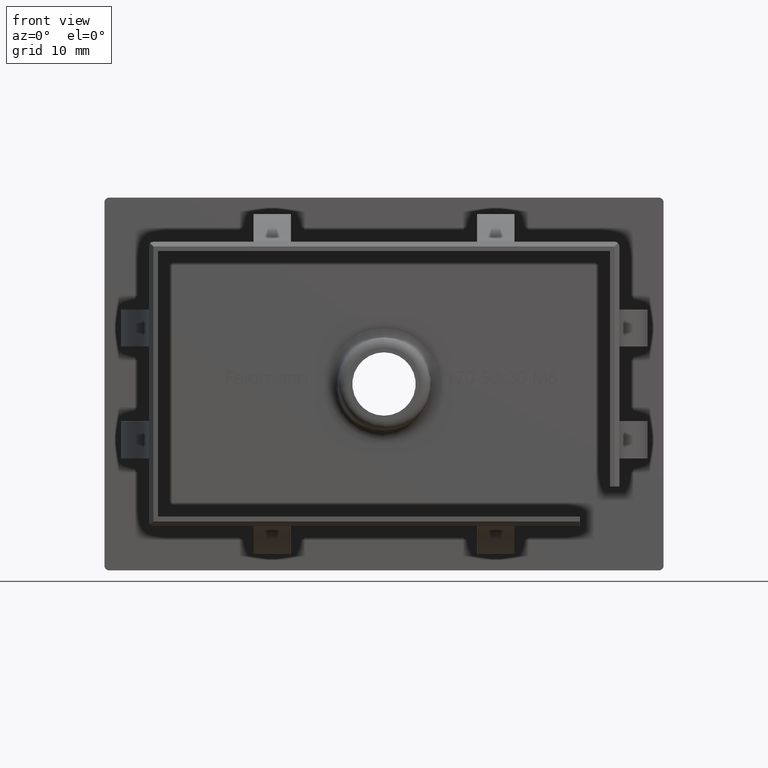
[diagram: clean part render]
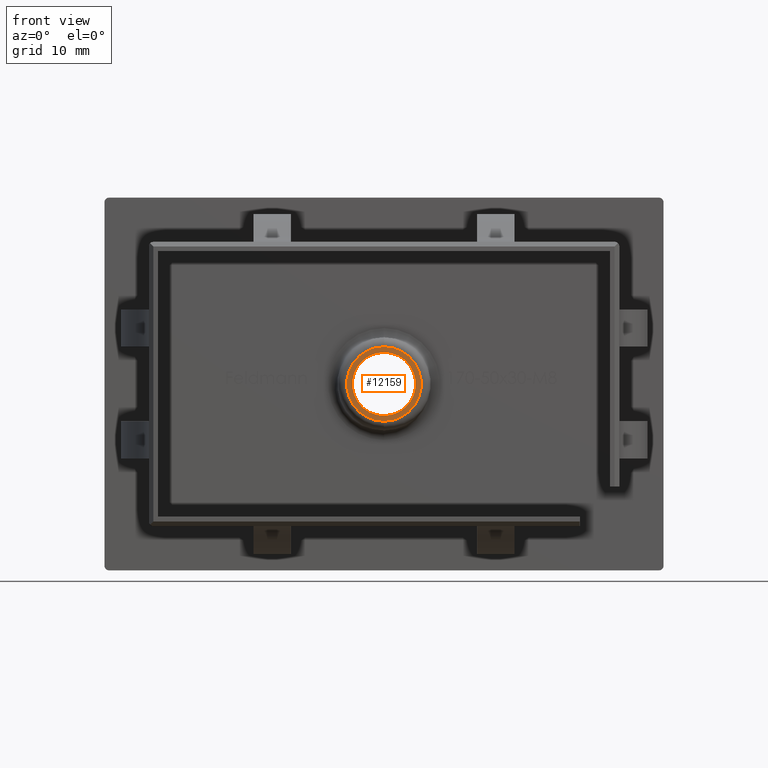
[diagram: same view with one face highlighted and labeled with its STEP entity id]
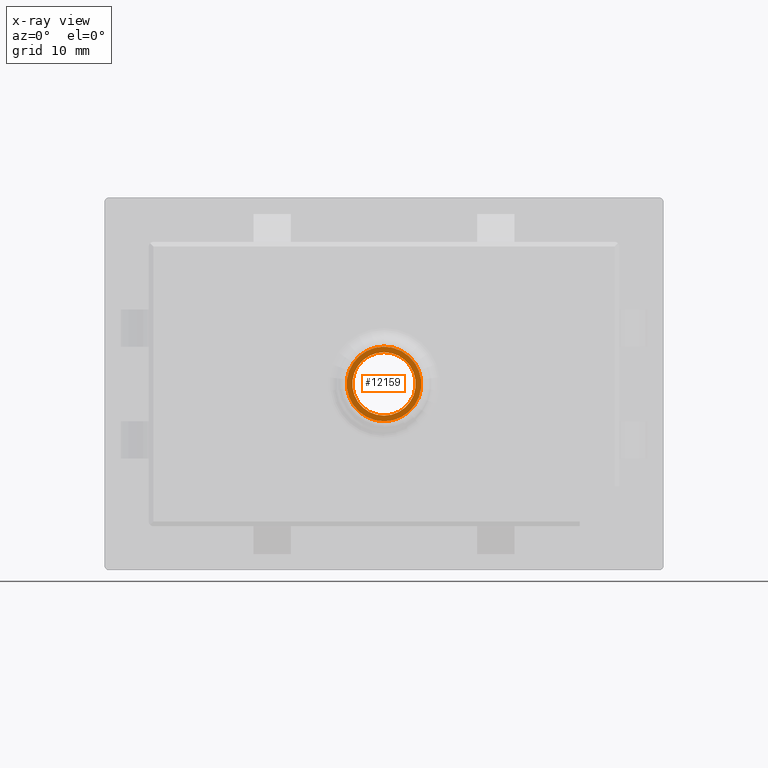
[diagram: x-ray of the same camera — body ghosted, the highlighted face saturated]
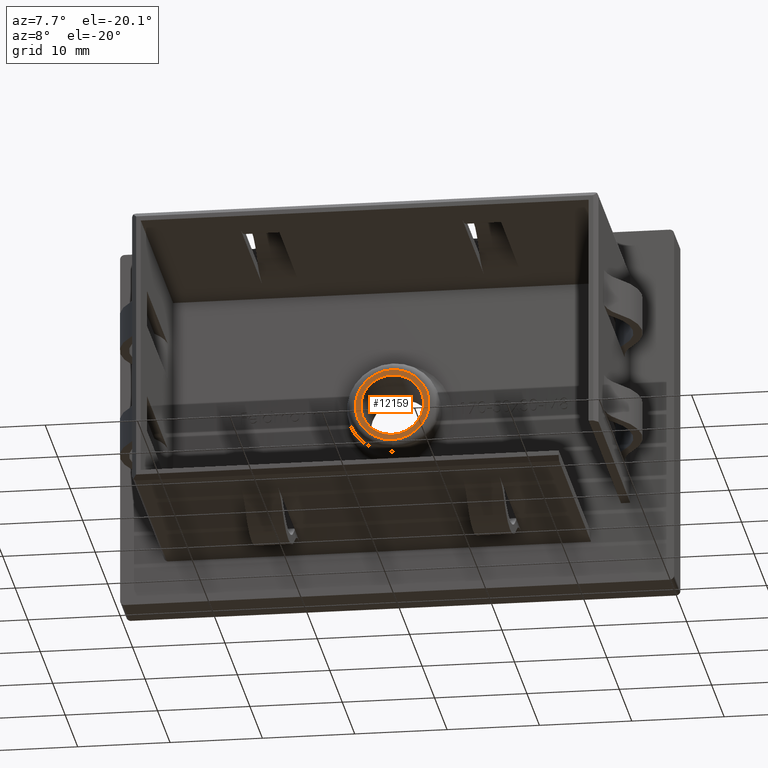
[diagram: same view with one face highlighted and labeled with its STEP entity id]
A machine part, front view. The second image highlights one B-rep face of the part: STEP entity #12159.
The next image is the same camera in x-ray: the body ghosted, the highlighted face saturated — about 0% of this face is hidden behind the body in this view.
A second angle (auxiliary view) of the same face is appended — the face is thin or edge-on in the first view.
In plain terms, the highlighted planar face has unit normal (0, 1, 0).
Its self-contained STEP definition (entity closure, byte-faithful):
#117 = VERTEX_POINT ( 'NONE', #12298 ) ;
#314 = AXIS2_PLACEMENT_3D ( 'NONE', #12546, #6965, #18228 ) ;
#385 = DIRECTION ( 'NONE',  ( 0.0000000000000000000, 0.0000000000000000000, 1.000000000000000000 ) ) ;
#721 = EDGE_LOOP ( 'NONE', ( #18172, #16436 ) ) ;
#775 = CARTESIAN_POINT ( 'NONE',  ( 0.0000000000000000000, -3.999999999999999100, 0.0000000000000000000 ) ) ;
#1139 = VERTEX_POINT ( 'NONE', #8818 ) ;
#1786 = DIRECTION ( 'NONE',  ( 0.0000000000000000000, 1.000000000000000000, 0.0000000000000000000 ) ) ;
#2279 = AXIS2_PLACEMENT_3D ( 'NONE', #775, #6658, #17973 ) ;
#2690 = CARTESIAN_POINT ( 'NONE',  ( 0.0000000000000000000, -3.999999999999999100, 4.000000000000000000 ) ) ;
#3018 = CIRCLE ( 'NONE', #3810, 3.399999999999987500 ) ;
#3362 = EDGE_CURVE ( 'NONE', #4489, #1139, #3018, .T. ) ;
#3409 = CARTESIAN_POINT ( 'NONE',  ( 0.0000000000000000000, -3.999999999999999100, 0.0000000000000000000 ) ) ;
#3810 = AXIS2_PLACEMENT_3D ( 'NONE', #3409, #6203, #385 ) ;
#4489 = VERTEX_POINT ( 'NONE', #10575 ) ;
#5424 = EDGE_CURVE ( 'NONE', #1139, #4489, #16009, .T. ) ;
#5796 = VERTEX_POINT ( 'NONE', #2690 ) ;
#6203 = DIRECTION ( 'NONE',  ( 0.0000000000000000000, 1.000000000000000000, 0.0000000000000000000 ) ) ;
#6470 = PLANE ( 'NONE',  #8857 ) ;
#6658 = DIRECTION ( 'NONE',  ( 0.0000000000000000000, 1.000000000000000000, 0.0000000000000000000 ) ) ;
#6684 = CIRCLE ( 'NONE', #314, 4.000000000000000000 ) ;
#6965 = DIRECTION ( 'NONE',  ( -0.0000000000000000000, -1.000000000000000000, -0.0000000000000000000 ) ) ;
#7768 = AXIS2_PLACEMENT_3D ( 'NONE', #10672, #12225, #13569 ) ;
#8336 = FACE_OUTER_BOUND ( 'NONE', #16510, .T. ) ;
#8401 = ORIENTED_EDGE ( 'NONE', *, *, #9663, .T. ) ;
#8818 = CARTESIAN_POINT ( 'NONE',  ( 0.0000000000000000000, -3.999999999999999100, 3.399999999999987500 ) ) ;
#8857 = AXIS2_PLACEMENT_3D ( 'NONE', #11162, #1786, #11751 ) ;
#9663 = EDGE_CURVE ( 'NONE', #117, #5796, #15602, .T. ) ;
#10575 = CARTESIAN_POINT ( 'NONE',  ( 4.163799117100985800E-016, -3.999999999999999100, -3.399999999999987500 ) ) ;
#10672 = CARTESIAN_POINT ( 'NONE',  ( 0.0000000000000000000, -3.999999999999999100, 0.0000000000000000000 ) ) ;
#11162 = CARTESIAN_POINT ( 'NONE',  ( 0.0000000000000000000, -3.999999999999999100, 0.0000000000000000000 ) ) ;
#11751 = DIRECTION ( 'NONE',  ( 0.0000000000000000000, -0.0000000000000000000, 1.000000000000000000 ) ) ;
#12159 = ADVANCED_FACE ( 'NONE', ( #17539, #8336 ), #6470, .F. ) ;
#12225 = DIRECTION ( 'NONE',  ( -0.0000000000000000000, -1.000000000000000000, -0.0000000000000000000 ) ) ;
#12298 = CARTESIAN_POINT ( 'NONE',  ( 5.510910596163088600E-016, -3.999999999999999100, -4.000000000000000000 ) ) ;
#12546 = CARTESIAN_POINT ( 'NONE',  ( 0.0000000000000000000, -3.999999999999999100, 0.0000000000000000000 ) ) ;
#13027 = ORIENTED_EDGE ( 'NONE', *, *, #16043, .T. ) ;
#13569 = DIRECTION ( 'NONE',  ( 0.0000000000000000000, 0.0000000000000000000, 1.000000000000000000 ) ) ;
#15602 = CIRCLE ( 'NONE', #7768, 4.000000000000000000 ) ;
#16009 = CIRCLE ( 'NONE', #2279, 3.399999999999987500 ) ;
#16043 = EDGE_CURVE ( 'NONE', #5796, #117, #6684, .T. ) ;
#16436 = ORIENTED_EDGE ( 'NONE', *, *, #3362, .T. ) ;
#16510 = EDGE_LOOP ( 'NONE', ( #13027, #8401 ) ) ;
#17539 = FACE_BOUND ( 'NONE', #721, .T. ) ;
#17973 = DIRECTION ( 'NONE',  ( 0.0000000000000000000, 0.0000000000000000000, 1.000000000000000000 ) ) ;
#18172 = ORIENTED_EDGE ( 'NONE', *, *, #5424, .T. ) ;
#18228 = DIRECTION ( 'NONE',  ( 0.0000000000000000000, 0.0000000000000000000, 1.000000000000000000 ) ) ;